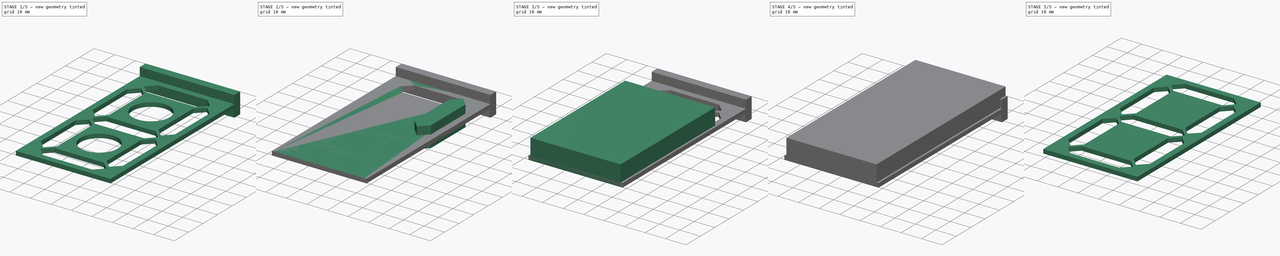
[diagram: build sequence overview — one tinted view per stage of 5, left to right]
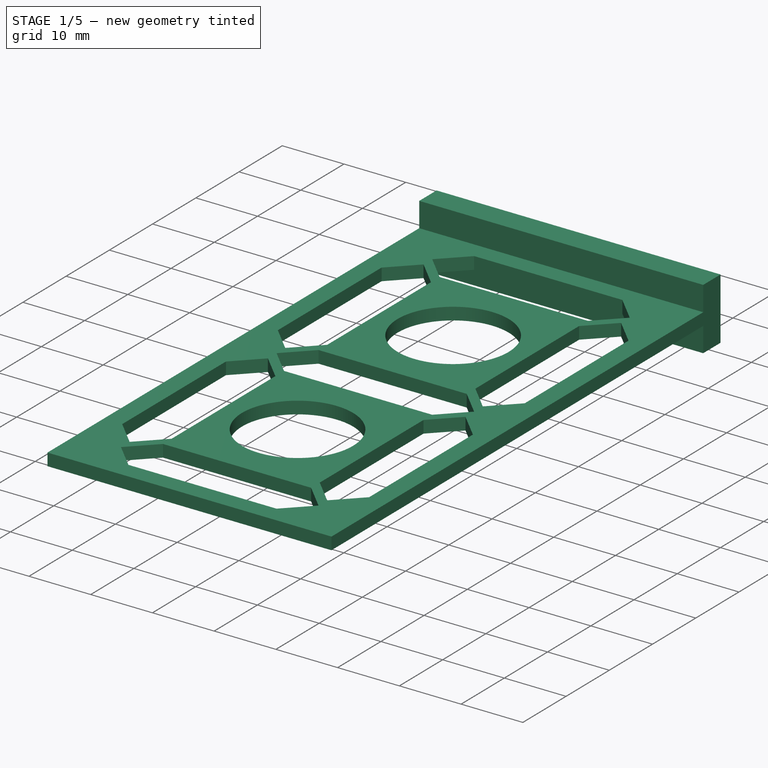
[diagram: stage 1 of 5 — iso view after this stage's code; geometry added in this stage tinted green]
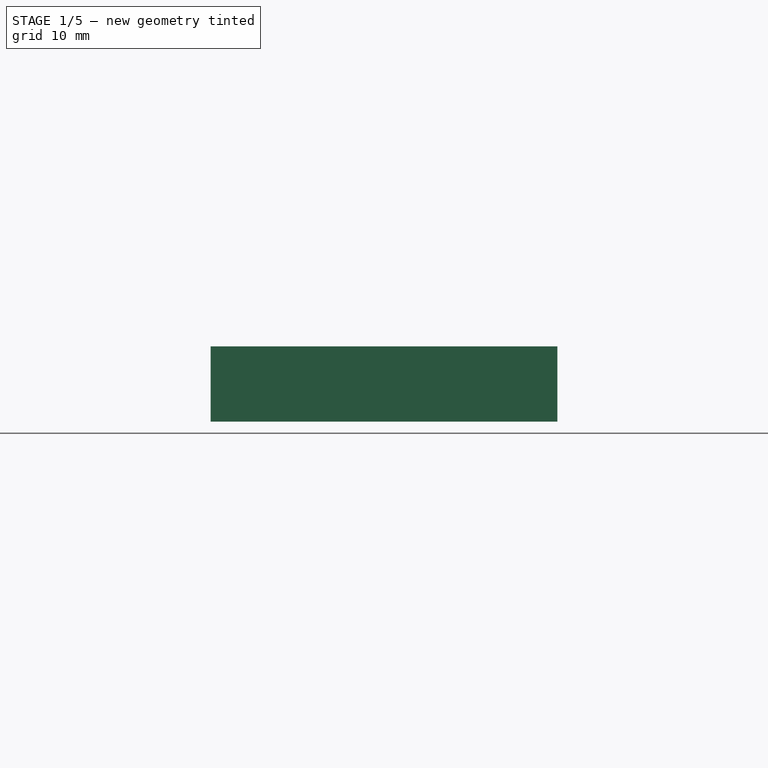
[diagram: stage 1 of 5 — front view after this stage's code; geometry added in this stage tinted green]
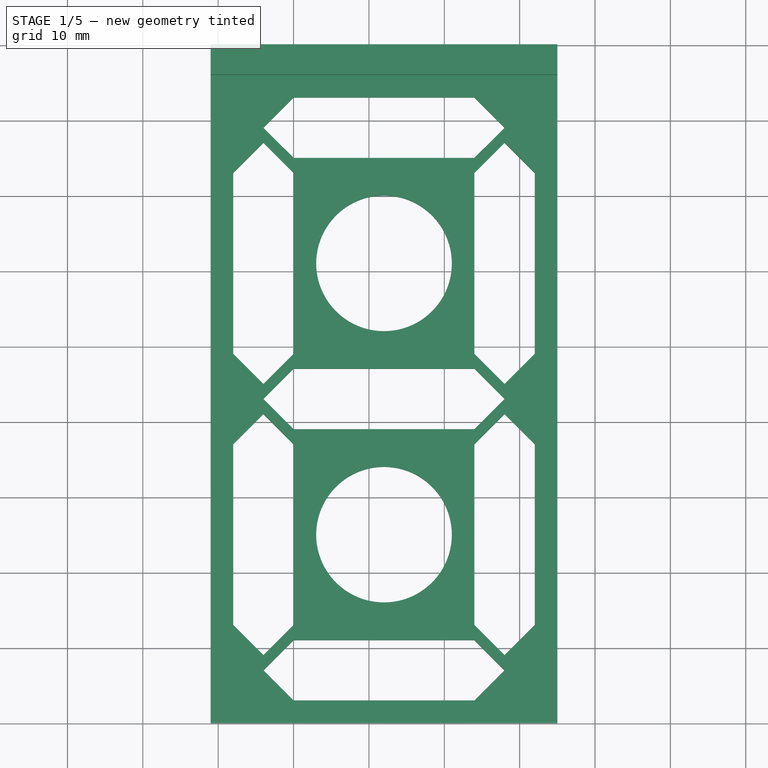
[diagram: stage 1 of 5 — top view after this stage's code; geometry added in this stage tinted green]
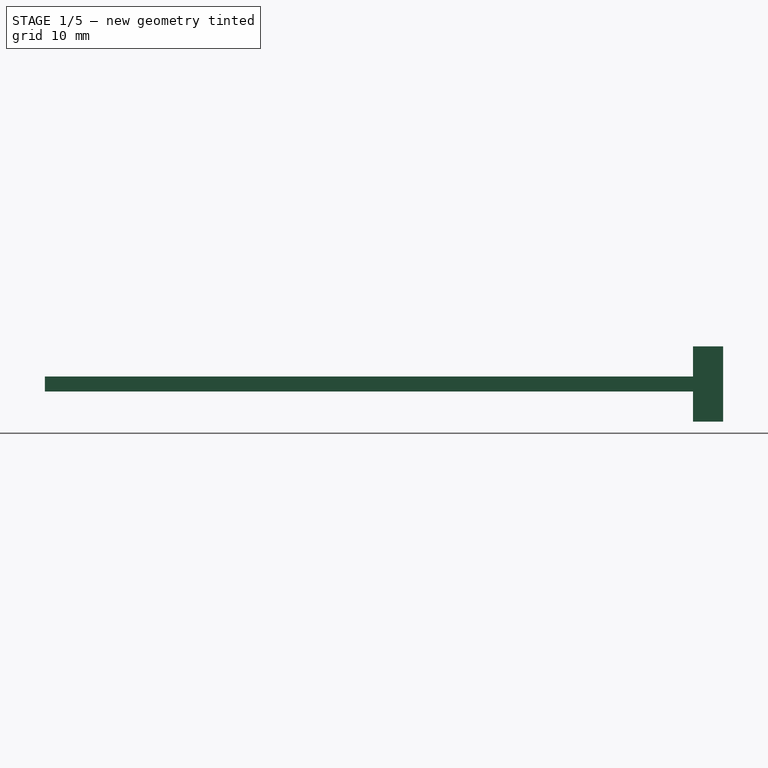
[diagram: stage 1 of 5 — right view after this stage's code; geometry added in this stage tinted green]
FCSTD DOCUMENT  (FreeCAD 0.17R13522 (Git))
Label: 7segmentsV2
License: CreativeCommons Attribution-ShareAlike
LicenseURL: http://creativecommons.org/licenses/by-sa/4.0/
objects: Part::Box×10, Part::Cut×10, Sketcher::SketchObject×7, Part::Extrusion×7, Part::Feature×3, Part::MultiFuse×2, Part::Cylinder×2
note: 41 computed .brp shape members not serialized (recipe doc carries the construction recipe); baked Part::Feature solids carry a one-line shape summary decoded from their .brp

FEATURE [Part::Box] Box  label="Cube"
  AttacherType = Attacher::AttachEngine3D
  Height = 2
  Length = 1
  Placement = pos=(-1,0,0) rot=(0,0,1;0rad)
  Width = 90
FEATURE [Part::Box] Box011  label="Cube011"
  AttacherType = Attacher::AttachEngine3D
  Height = 10
  Length = 46
  Placement = pos=(-1,86,-4) rot=(0,0,1;0rad)
  Width = 4
FEATURE [Part::Feature] Cut007001  label="plantilla_rellena"
  shape: bbox 46 x 86 x 2 mm, 48 faces (baked)
FEATURE [Part::Feature] Fusion002001  label="Fusion004"
  Placement = pos=(0,27,0) rot=(0,0,1;0rad)
  shape: bbox 20 x 12 x 10 mm, 35 faces (baked)
FEATURE [Part::Cylinder] Cylinder
  Angle = 360
  AttacherType = Attacher::AttachEngine3D
  Height = 10
  Placement = pos=(22,25,-3) rot=(0,0,1;0rad)
  Radius = 9
FEATURE [Part::Cylinder] Cylinder001
  Angle = 360
  AttacherType = Attacher::AttachEngine3D
  Height = 10
  Placement = pos=(22,61,-3) rot=(0,0,1;0rad)
  Radius = 9
FEATURE [Part::Feature] Cut007001001  label="plantilla_rellena001"
  shape: bbox 46 x 86 x 2 mm, 48 faces (baked)
FEATURE [Part::Cut] Cut007001002
  Base = -> Cut007001001
  Tool = -> Cylinder001
FEATURE [Part::Cut] Cut007001003  label="plantilla_liviana"
  Base = -> Cut007001002
  Tool = -> Cylinder
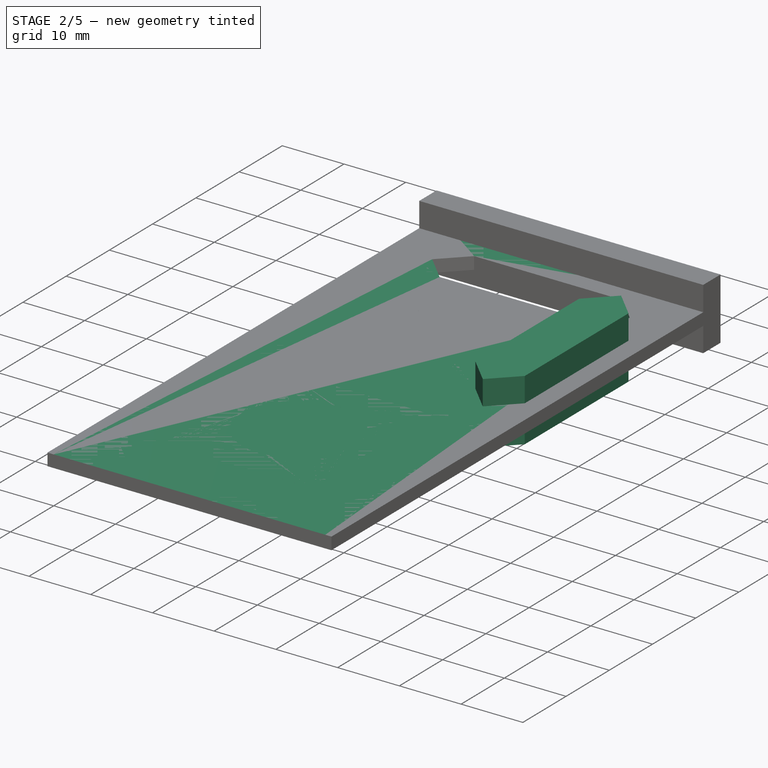
[diagram: stage 2 of 5 — iso view after this stage's code; geometry added in this stage tinted green]
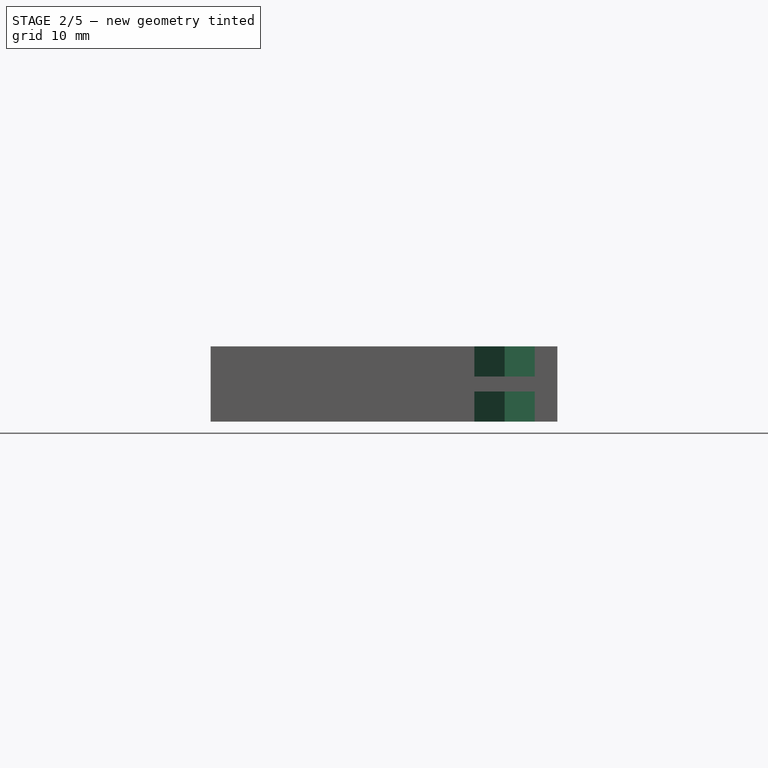
[diagram: stage 2 of 5 — front view after this stage's code; geometry added in this stage tinted green]
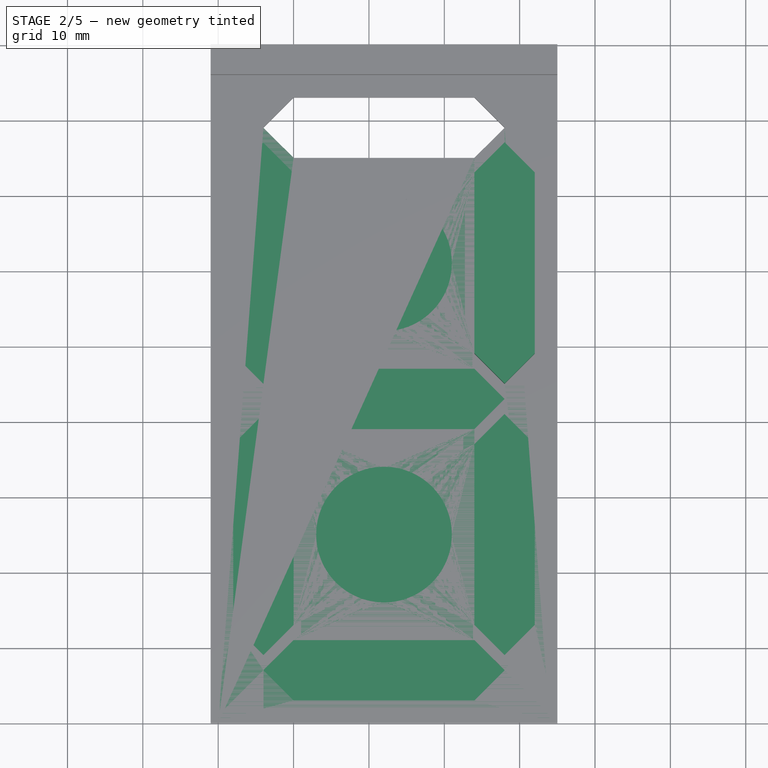
[diagram: stage 2 of 5 — top view after this stage's code; geometry added in this stage tinted green]
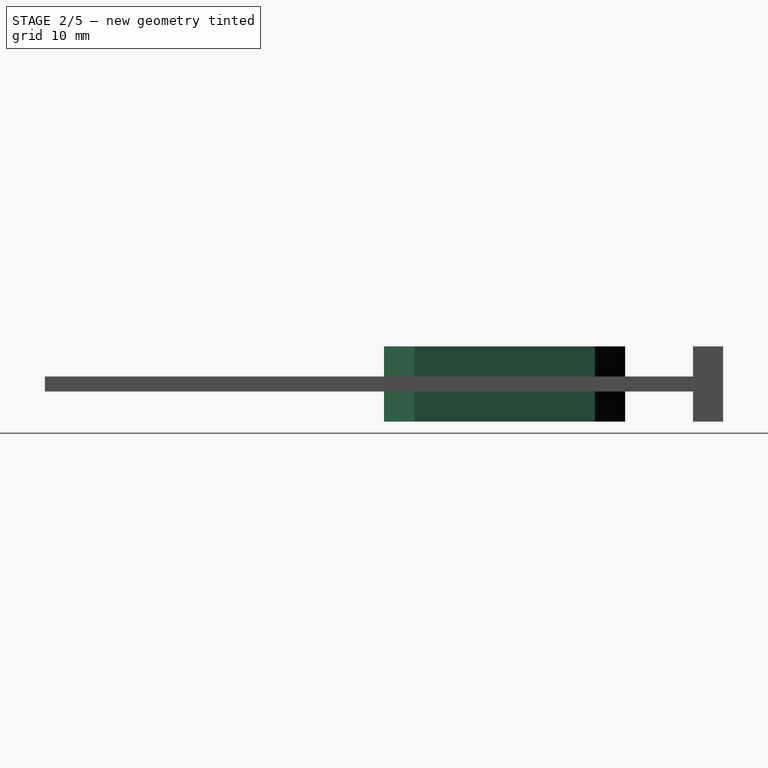
[diagram: stage 2 of 5 — right view after this stage's code; geometry added in this stage tinted green]
FEATURE [Sketcher::SketchObject] Sketch006  label="Sketch_C"
  ExternalGeometry = -> [Box004]
  MapMode = 5
  Placement = pos=(0,0,10) rot=(0,0,1;0rad)
  Support = -> [Box004]
  sketch-geometry (6):
    g0: LineSegment StartX=38 StartY=41 StartZ=0 EndX=42 EndY=37 EndZ=0
    g1: LineSegment StartX=42 StartY=37 StartZ=0 EndX=42 EndY=13 EndZ=0
    g2: LineSegment StartX=42 StartY=13 StartZ=0 EndX=38 EndY=9 EndZ=0
    g3: LineSegment StartX=38 StartY=9 StartZ=0 EndX=34 EndY=13 EndZ=0
    g4: LineSegment StartX=34 StartY=13 StartZ=0 EndX=34 EndY=37 EndZ=0
    g5: LineSegment StartX=34 StartY=37 StartZ=0 EndX=38 EndY=41 EndZ=0
  constraints (18):
    c: Coincident(g0,g1)
    c: Vertical(g1)
    c: Coincident(g1,g2)
    c: Coincident(g2,g3)
    c: Coincident(g3,g4)
    c: Vertical(g4)
    c: Coincident(g4,g5)
    c: Angle(g4,g5) = 2.35619
    c: Angle(g0,g1) = 2.35619
    c: Angle(g3,g4) = 2.35619
    c: Angle(g1,g2) = 2.35619
    c: DistanceX(g3,g1) = 8
    c: DistanceY(g3,g1) = 0
    c: DistanceY(g0,g4) = 0
    c: Coincident(g0,g5)
    c: DistanceX(g-3,g0) = 38
    c: DistanceY(g-1,g2) = 9
    c: Distance(g4,g3) = 24
FEATURE [Part::Box] Box001  label="Cube001"
  AttacherType = Attacher::AttachEngine3D
  Height = 2
  Length = 44
  Width = 90
FEATURE [Sketcher::SketchObject] Sketch003  label="Sketch_D"
  ExternalGeometry = -> [Box001]
  MapMode = 5
  Placement = pos=(0,0,2) rot=(0,0,1;0rad)
  Support = -> [Box001]
  sketch-geometry (6):
    g0: LineSegment StartX=10 StartY=11 StartZ=0 EndX=6 EndY=7 EndZ=0
    g1: LineSegment StartX=6 StartY=7 StartZ=0 EndX=10 EndY=3 EndZ=0
    g2: LineSegment StartX=10 StartY=3 StartZ=0 EndX=34 EndY=3 EndZ=0
    g3: LineSegment StartX=34 StartY=3 StartZ=0 EndX=38 EndY=7 EndZ=0
    g4: LineSegment StartX=38 StartY=7 StartZ=0 EndX=34 EndY=11 EndZ=0
    g5: LineSegment StartX=34 StartY=11 StartZ=0 EndX=10 EndY=11 EndZ=0
  constraints (18):
    c: Coincident(g0,g1)
    c: Coincident(g1,g2)
    c: Horizontal(g2)
    c: Coincident(g2,g3)
    c: Coincident(g3,g4)
    c: Coincident(g4,g5)
    c: Coincident(g5,g0)
    c: Horizontal(g5)
    c: DistanceY(g1,g0) = 8
    c: Angle(g0,g5) = 2.35619
    c: Angle(g2,g1) = 2.35619
    c: Angle(g5,g4) = 2.35619
    c: Angle(g3,g2) = 2.35619
    c: DistanceX(g0,g1) = 0
    c: DistanceX(g4,g2) = 0
    c: DistanceX(g-1,g0) = 6
    c: DistanceX(g3,g-3) = 6
    c: DistanceY(g-1,g1) = 3
FEATURE [Part::Box] Box005  label="Cube005"
  AttacherType = Attacher::AttachEngine3D
  Height = 10
  Length = 44
  Width = 66
FEATURE [Sketcher::SketchObject] Sketch008  label="Sketch_G"
  ExternalGeometry = -> [Box006]
  MapMode = 5
  Placement = pos=(0,0,10) rot=(0,0,1;0rad)
  Support = -> [Box006]
  sketch-geometry (6):
    g0: LineSegment StartX=10 StartY=47 StartZ=0 EndX=6 EndY=43 EndZ=0
    g1: LineSegment StartX=6 StartY=43 StartZ=0 EndX=10 EndY=39 EndZ=0
    g2: LineSegment StartX=10 StartY=39 StartZ=0 EndX=34 EndY=39 EndZ=0
    g3: LineSegment StartX=34 StartY=39 StartZ=0 EndX=38 EndY=43 EndZ=0
    g4: LineSegment StartX=38 StartY=43 StartZ=0 EndX=34 EndY=47 EndZ=0
    g5: LineSegment StartX=34 StartY=47 StartZ=0 EndX=10 EndY=47 EndZ=0
  constraints (18):
    c: Coincident(g0,g1)
    c: Coincident(g1,g2)
    c: Horizontal(g2)
    c: Coincident(g2,g3)
    c: Coincident(g3,g4)
    c: Coincident(g4,g5)
    c: Coincident(g5,g0)
    c: Horizontal(g5)
    c: DistanceY(g1,g0) = 8
    c: Angle(g0,g5) = 2.35619
    c: Angle(g2,g1) = 2.35619
    c: Angle(g5,g4) = 2.35619
    c: Angle(g3,g2) = 2.35619
    c: DistanceX(g0,g1) = 0
    c: DistanceX(g4,g2) = 0
    c: DistanceX(g-1,g0) = 6
    c: DistanceX(g3,g-3) = 6
    c: DistanceY(g-1,g3) = 43
FEATURE [Part::Box] Box007  label="Cube007"
  AttacherType = Attacher::AttachEngine3D
  Height = 10
  Length = 44
  Width = 90
FEATURE [Part::Extrusion] Extrude001  label="Extrude_A"
  Base = -> Sketch009
  Dir = (0,0,1)
  DirMode = 2
  FaceMakerClass = Part::FaceMakerBullseye
  LengthFwd = 10
  LengthRev = 0
  Placement = pos=(0,0,-14) rot=(0,0,1;0rad)
  Solid = true
  Symmetric = false
FEATURE [Part::Extrusion] Extrude002  label="Extrude_B"
  Base = -> Sketch007
  Dir = (0,0,1)
  DirMode = 2
  FaceMakerClass = Part::FaceMakerBullseye
  LengthFwd = 10
  LengthRev = 0
  Placement = pos=(0,0,-14) rot=(0,0,1;0rad)
  Solid = true
  Symmetric = false
FEATURE [Part::Cut] Cut
  Base = -> Box001
  Tool = -> Extrude001
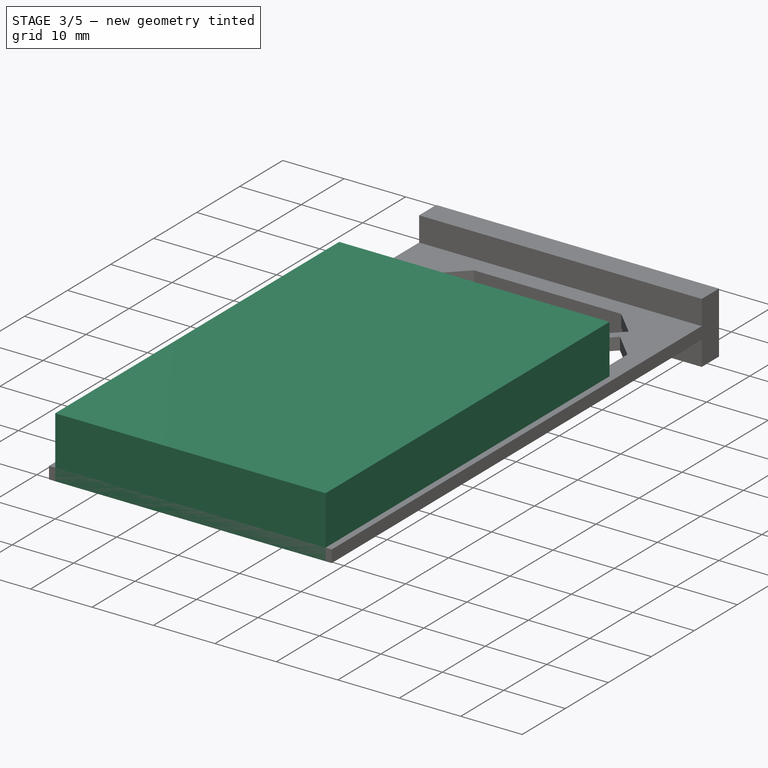
[diagram: stage 3 of 5 — iso view after this stage's code; geometry added in this stage tinted green]
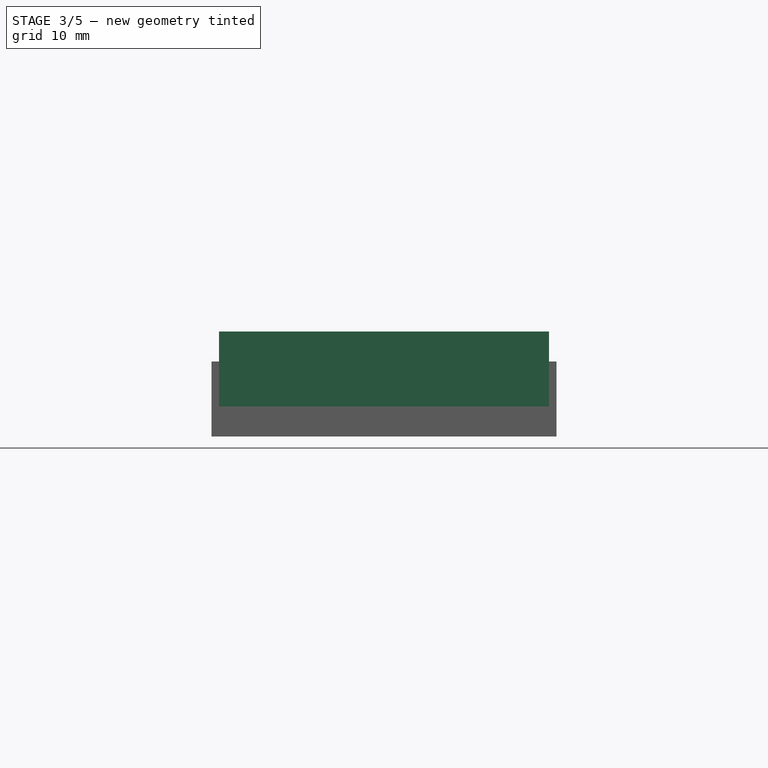
[diagram: stage 3 of 5 — front view after this stage's code; geometry added in this stage tinted green]
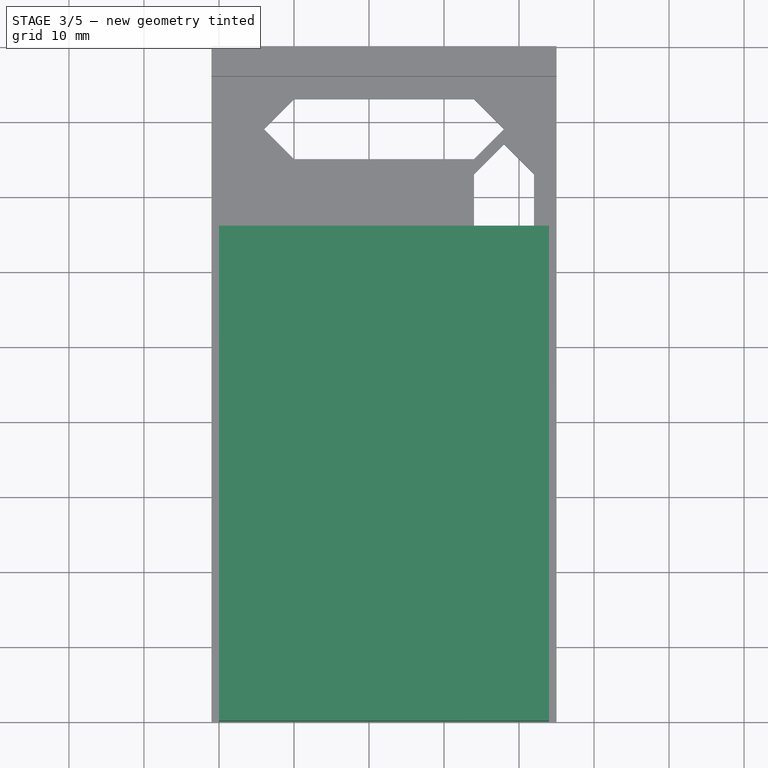
[diagram: stage 3 of 5 — top view after this stage's code; geometry added in this stage tinted green]
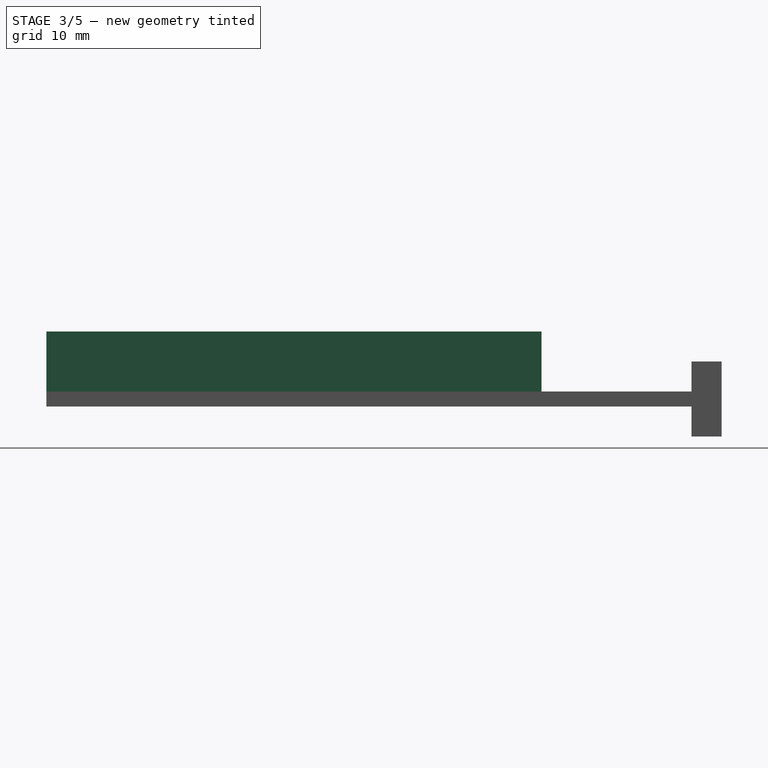
[diagram: stage 3 of 5 — right view after this stage's code; geometry added in this stage tinted green]
FEATURE [Part::Box] Box004  label="Cube004"
  AttacherType = Attacher::AttachEngine3D
  Height = 10
  Length = 44
  Width = 66
FEATURE [Sketcher::SketchObject] Sketch010  label="Sketch_F"
  ExternalGeometry = -> [Box008]
  MapMode = 5
  Placement = pos=(0,0,10) rot=(0,0,1;0rad)
  Support = -> [Box008]
  sketch-geometry (6):
    g0: LineSegment StartX=6 StartY=77 StartZ=0 EndX=10 EndY=73 EndZ=0
    g1: LineSegment StartX=10 StartY=73 StartZ=0 EndX=10 EndY=49 EndZ=0
    g2: LineSegment StartX=10 StartY=49 StartZ=0 EndX=6 EndY=45 EndZ=0
    g3: LineSegment StartX=6 StartY=45 StartZ=0 EndX=2 EndY=49 EndZ=0
    g4: LineSegment StartX=2 StartY=49 StartZ=0 EndX=2 EndY=73 EndZ=0
    g5: LineSegment StartX=2 StartY=73 StartZ=0 EndX=6 EndY=77 EndZ=0
  constraints (18):
    c: Coincident(g0,g1)
    c: Vertical(g1)
    c: Coincident(g1,g2)
    c: Coincident(g2,g3)
    c: Coincident(g3,g4)
    c: Vertical(g4)
    c: Coincident(g4,g5)
    c: Angle(g4,g5) = 2.35619
    c: Angle(g0,g1) = 2.35619
    c: Angle(g3,g4) = 2.35619
    c: Angle(g1,g2) = 2.35619
    c: DistanceX(g3,g1) = 8
    c: DistanceY(g3,g1) = 0
    c: DistanceY(g0,g4) = 0
    c: Coincident(g0,g5)
    c: DistanceX(g-3,g0) = 6
    c: Distance(g4,g3) = 24
    c: DistanceY(g-1,g2) = 45
FEATURE [Part::Box] Box009  label="Cube009"
  AttacherType = Attacher::AttachEngine3D
  Height = 10
  Length = 44
  Width = 66
FEATURE [Sketcher::SketchObject] Sketch011  label="Sketch_E"
  ExternalGeometry = -> [Box009]
  MapMode = 5
  Placement = pos=(0,0,10) rot=(0,0,1;0rad)
  Support = -> [Box009]
  sketch-geometry (6):
    g0: LineSegment StartX=6 StartY=41 StartZ=0 EndX=10 EndY=37 EndZ=0
    g1: LineSegment StartX=10 StartY=37 StartZ=0 EndX=10 EndY=13 EndZ=0
    g2: LineSegment StartX=10 StartY=13 StartZ=0 EndX=6 EndY=9 EndZ=0
    g3: LineSegment StartX=6 StartY=9 StartZ=0 EndX=2 EndY=13 EndZ=0
    g4: LineSegment StartX=2 StartY=13 StartZ=0 EndX=2 EndY=37 EndZ=0
    g5: LineSegment StartX=2 StartY=37 StartZ=0 EndX=6 EndY=41 EndZ=0
  constraints (18):
    c: Coincident(g0,g1)
    c: Vertical(g1)
    c: Coincident(g1,g2)
    c: Coincident(g2,g3)
    c: Coincident(g3,g4)
    c: Vertical(g4)
    c: Coincident(g4,g5)
    c: Angle(g4,g5) = 2.35619
    c: Angle(g0,g1) = 2.35619
    c: Angle(g3,g4) = 2.35619
    c: Angle(g1,g2) = 2.35619
    c: DistanceX(g3,g1) = 8
    c: DistanceY(g3,g1) = 0
    c: DistanceY(g0,g4) = 0
    c: Coincident(g0,g5)
    c: DistanceX(g-3,g0) = 6
    c: DistanceY(g-1,g2) = 9
    c: Distance(g4,g3) = 24
FEATURE [Part::Extrusion] Extrude  label="Extrude_D"
  Base = -> Sketch003
  Dir = (0,0,1)
  DirMode = 2
  FaceMakerClass = Part::FaceMakerBullseye
  LengthFwd = 10
  LengthRev = 0
  Placement = pos=(0,0,-6) rot=(0,0,1;0rad)
  Solid = true
  Symmetric = false
FEATURE [Part::Extrusion] Extrude003  label="Extrude_C"
  Base = -> Sketch006
  Dir = (0,0,1)
  DirMode = 2
  FaceMakerClass = Part::FaceMakerBullseye
  LengthFwd = 10
  LengthRev = 0
  Placement = pos=(0,0,-14) rot=(0,0,1;0rad)
  Solid = true
  Symmetric = false
FEATURE [Part::Cut] Cut001
  Base = -> Cut
  Tool = -> Extrude002
FEATURE [Part::Cut] Cut002
  Base = -> Cut001
  Tool = -> Extrude003
FEATURE [Part::Cut] Cut003
  Base = -> Cut002
  Tool = -> Extrude
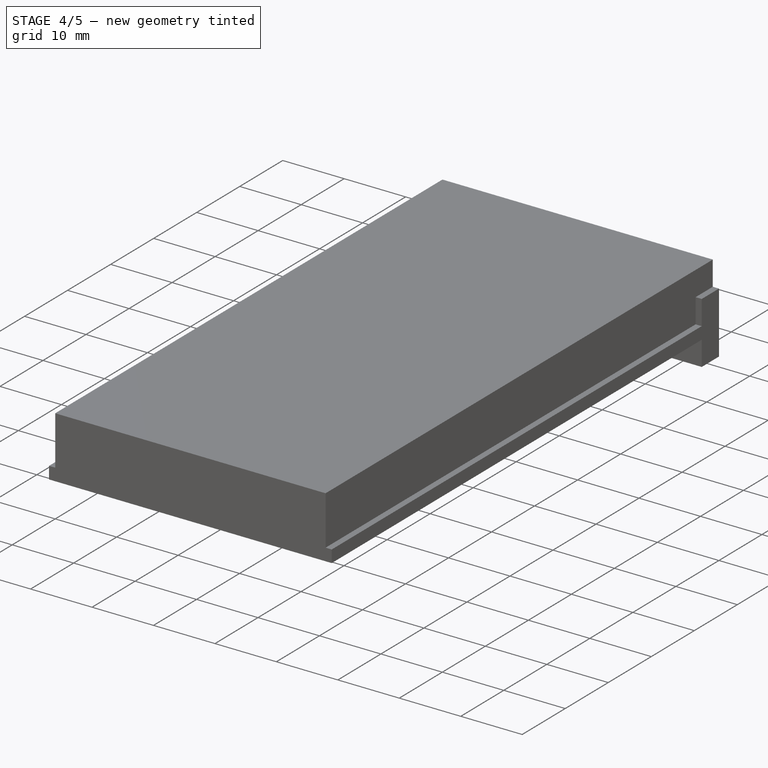
[diagram: stage 4 of 5 — iso view after this stage's code; geometry added in this stage tinted green]
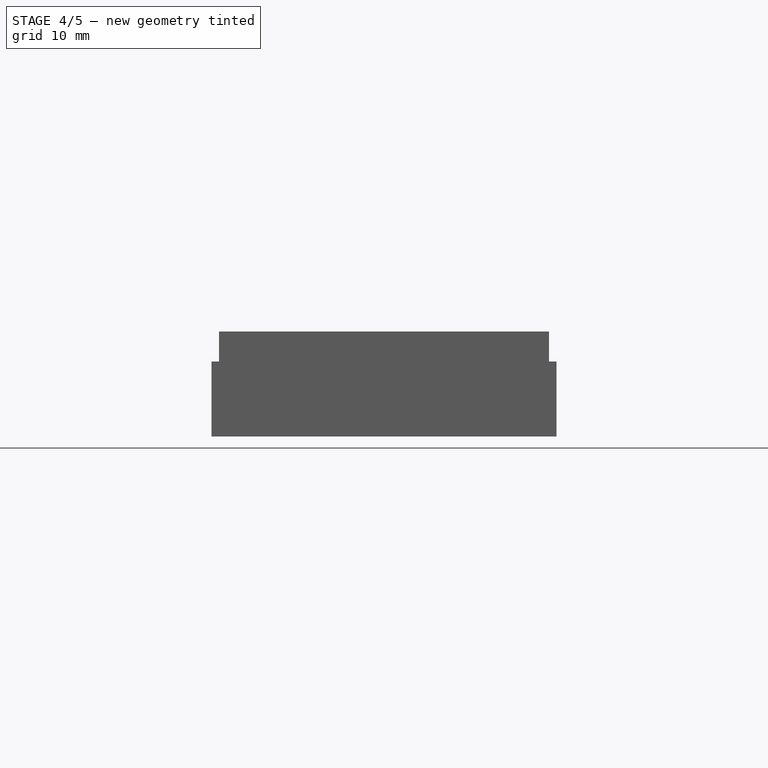
[diagram: stage 4 of 5 — front view after this stage's code; geometry added in this stage tinted green]
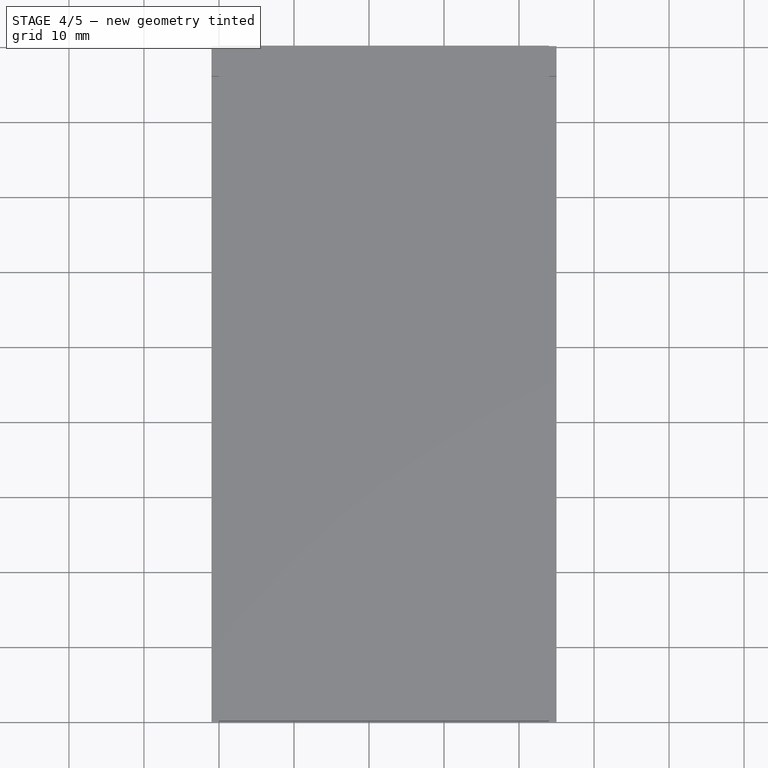
[diagram: stage 4 of 5 — top view after this stage's code; geometry added in this stage tinted green]
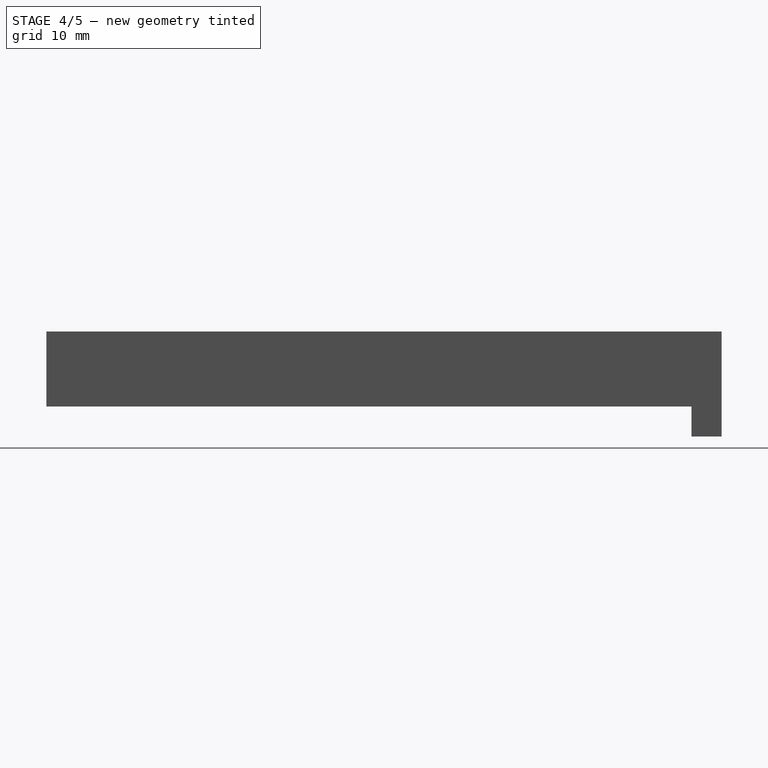
[diagram: stage 4 of 5 — right view after this stage's code; geometry added in this stage tinted green]
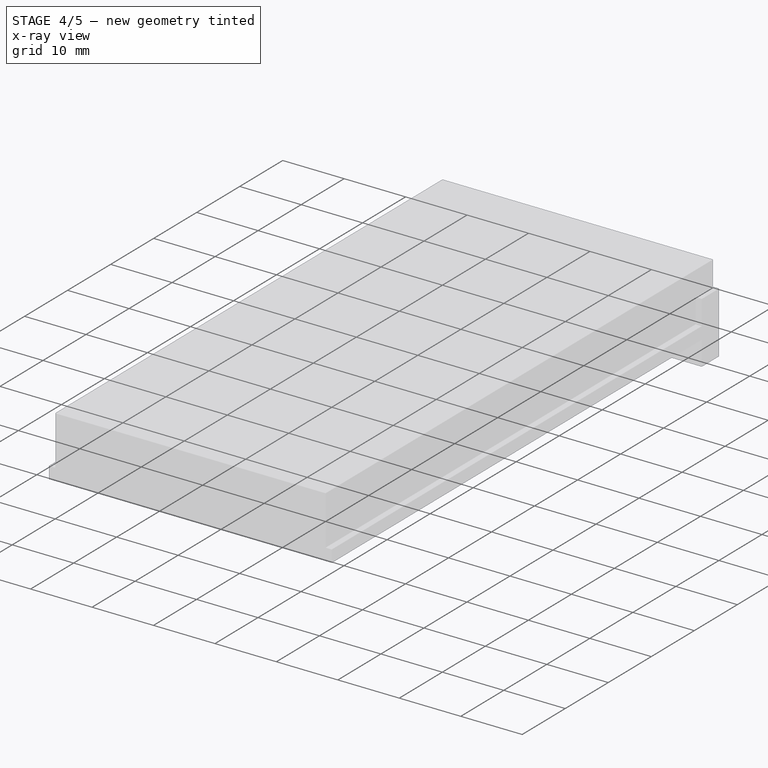
[diagram: stage 4 of 5 — x-ray composite at the iso view; earlier geometry ghosted, this stage's added geometry solid]
FEATURE [Sketcher::SketchObject] Sketch007  label="Sketch_B"
  ExternalGeometry = -> [Box005]
  MapMode = 5
  Placement = pos=(0,0,10) rot=(0,0,1;0rad)
  Support = -> [Box005]
  sketch-geometry (6):
    g0: LineSegment StartX=38 StartY=77 StartZ=0 EndX=42 EndY=73 EndZ=0
    g1: LineSegment StartX=42 StartY=73 StartZ=0 EndX=42 EndY=49 EndZ=0
    g2: LineSegment StartX=42 StartY=49 StartZ=0 EndX=38 EndY=45 EndZ=0
    g3: LineSegment StartX=38 StartY=45 StartZ=0 EndX=34 EndY=49 EndZ=0
    g4: LineSegment StartX=34 StartY=49 StartZ=0 EndX=34 EndY=73 EndZ=0
    g5: LineSegment StartX=34 StartY=73 StartZ=0 EndX=38 EndY=77 EndZ=0
  constraints (18):
    c: Coincident(g0,g1)
    c: Vertical(g1)
    c: Coincident(g1,g2)
    c: Coincident(g2,g3)
    c: Coincident(g3,g4)
    c: Vertical(g4)
    c: Coincident(g4,g5)
    c: Angle(g4,g5) = 2.35619
    c: Angle(g0,g1) = 2.35619
    c: Angle(g3,g4) = 2.35619
    c: Angle(g1,g2) = 2.35619
    c: DistanceX(g3,g1) = 8
    c: DistanceY(g3,g1) = 0
    c: DistanceY(g0,g4) = 0
    c: Coincident(g0,g5)
    c: DistanceX(g-3,g0) = 38
    c: Distance(g4,g3) = 24
    c: DistanceY(g-1,g2) = 45
FEATURE [Part::Box] Box006  label="Cube006"
  AttacherType = Attacher::AttachEngine3D
  Height = 10
  Length = 44
  Width = 90
FEATURE [Sketcher::SketchObject] Sketch009  label="Sketch_A"
  ExternalGeometry = -> [Box007]
  MapMode = 5
  Placement = pos=(0,0,10) rot=(0,0,1;0rad)
  Support = -> [Box007]
  sketch-geometry (6):
    g0: LineSegment StartX=10 StartY=83 StartZ=0 EndX=6 EndY=79 EndZ=0
    g1: LineSegment StartX=6 StartY=79 StartZ=0 EndX=10 EndY=75 EndZ=0
    g2: LineSegment StartX=10 StartY=75 StartZ=0 EndX=34 EndY=75 EndZ=0
    g3: LineSegment StartX=34 StartY=75 StartZ=0 EndX=38 EndY=79 EndZ=0
    g4: LineSegment StartX=38 StartY=79 StartZ=0 EndX=34 EndY=83 EndZ=0
    g5: LineSegment StartX=34 StartY=83 StartZ=0 EndX=10 EndY=83 EndZ=0
  constraints (18):
    c: Coincident(g0,g1)
    c: Coincident(g1,g2)
    c: Horizontal(g2)
    c: Coincident(g2,g3)
    c: Coincident(g3,g4)
    c: Coincident(g4,g5)
    c: Coincident(g5,g0)
    c: Horizontal(g5)
    c: DistanceY(g1,g0) = 8
    c: Angle(g0,g5) = 2.35619
    c: Angle(g2,g1) = 2.35619
    c: Angle(g5,g4) = 2.35619
    c: Angle(g3,g2) = 2.35619
    c: DistanceX(g0,g1) = 0
    c: DistanceX(g4,g2) = 0
    c: DistanceX(g-1,g0) = 6
    c: DistanceX(g3,g-3) = 6
    c: DistanceY(g0) = 79
FEATURE [Part::Box] Box008  label="Cube008"
  AttacherType = Attacher::AttachEngine3D
  Height = 10
  Length = 44
  Width = 66
FEATURE [Part::Extrusion] Extrude004  label="Extrude_E"
  Base = -> Sketch011
  Dir = (0,0,1)
  DirMode = 2
  FaceMakerClass = Part::FaceMakerBullseye
  LengthFwd = 10
  LengthRev = 0
  Placement = pos=(0,0,-14) rot=(0,0,1;0rad)
  Solid = true
  Symmetric = false
FEATURE [Part::Extrusion] Extrude005  label="Extrude_F"
  Base = -> Sketch010
  Dir = (0,0,1)
  DirMode = 2
  FaceMakerClass = Part::FaceMakerBullseye
  LengthFwd = 10
  LengthRev = 0
  Placement = pos=(0,0,-14) rot=(0,0,1;0rad)
  Solid = true
  Symmetric = false
FEATURE [Part::Cut] Cut004
  Base = -> Cut003
  Tool = -> Extrude004
FEATURE [Part::Cut] Cut005
  Base = -> Cut004
  Tool = -> Extrude005
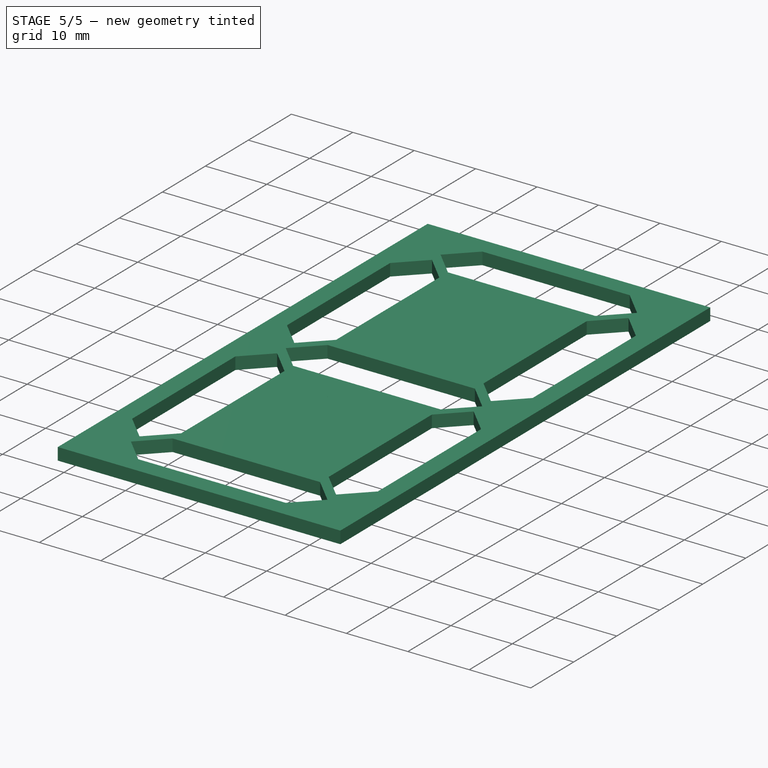
[diagram: stage 5 of 5 — iso view after this stage's code; geometry added in this stage tinted green]
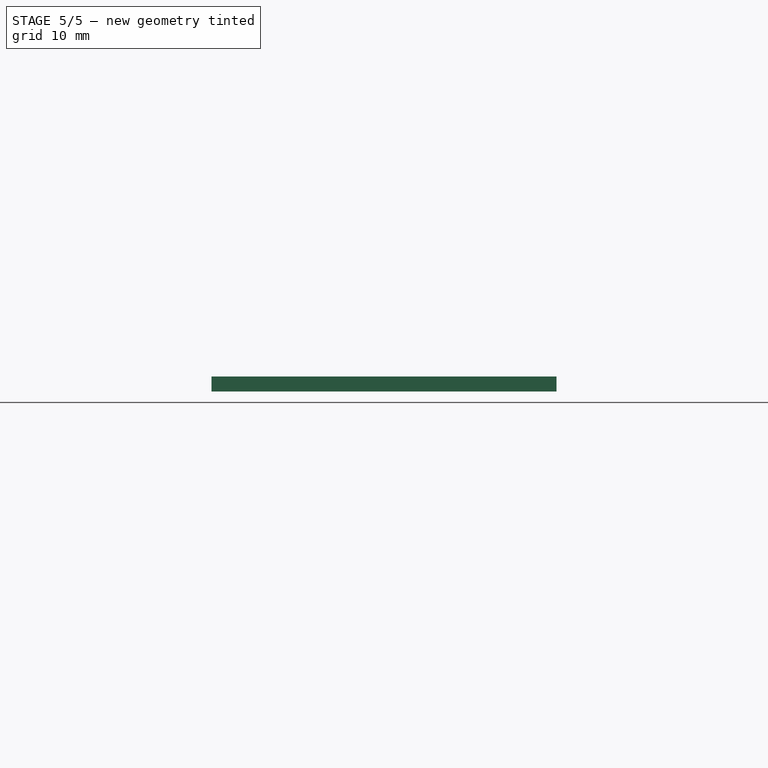
[diagram: stage 5 of 5 — front view after this stage's code; geometry added in this stage tinted green]
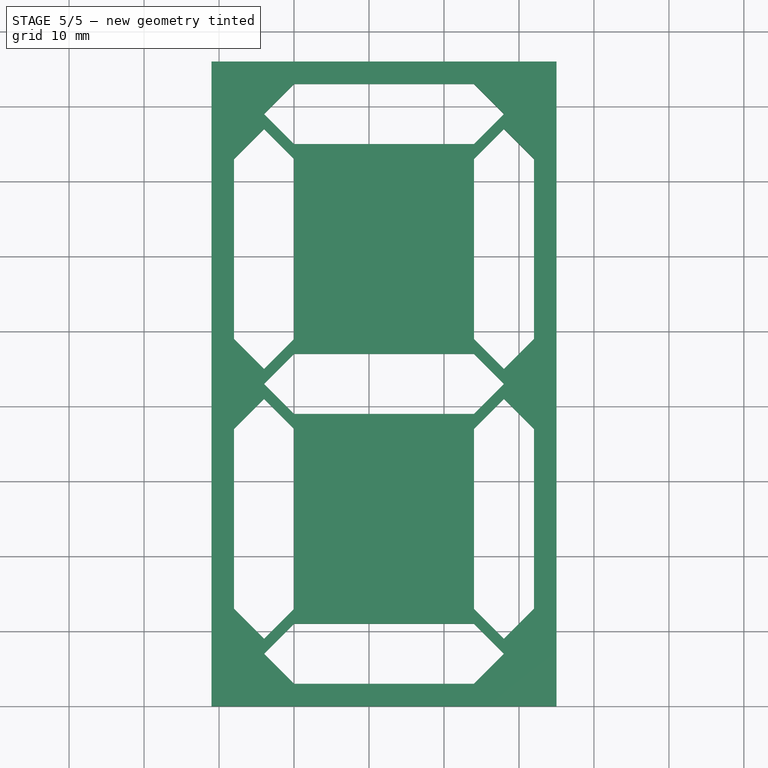
[diagram: stage 5 of 5 — top view after this stage's code; geometry added in this stage tinted green]
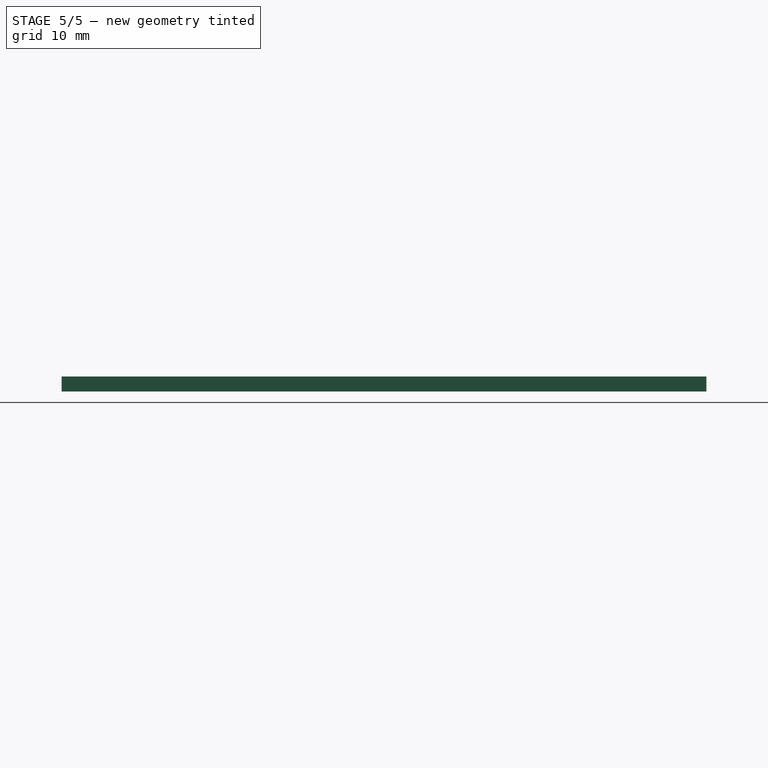
[diagram: stage 5 of 5 — right view after this stage's code; geometry added in this stage tinted green]
FEATURE [Part::Extrusion] Extrude006  label="Extrude_G"
  Base = -> Sketch008
  Dir = (0,0,1)
  DirMode = 2
  FaceMakerClass = Part::FaceMakerBullseye
  LengthFwd = 10
  LengthRev = 0
  Placement = pos=(0,0,-14) rot=(0,0,1;0rad)
  Solid = true
  Symmetric = false
FEATURE [Part::Cut] Cut006
  Base = -> Cut005
  Tool = -> Extrude006
FEATURE [Part::Box] Box010  label="Cube010"
  AttacherType = Attacher::AttachEngine3D
  Height = 2
  Length = 1
  Placement = pos=(44,0,0) rot=(0,0,1;0rad)
  Width = 90
FEATURE [Part::MultiFuse] Fusion
  Shapes = -> [Cut006,Box]
FEATURE [Part::MultiFuse] Fusion001
  Shapes = -> [Fusion,Box010]
FEATURE [Part::Cut] Cut007
  Base = -> Fusion001
  Tool = -> Box011
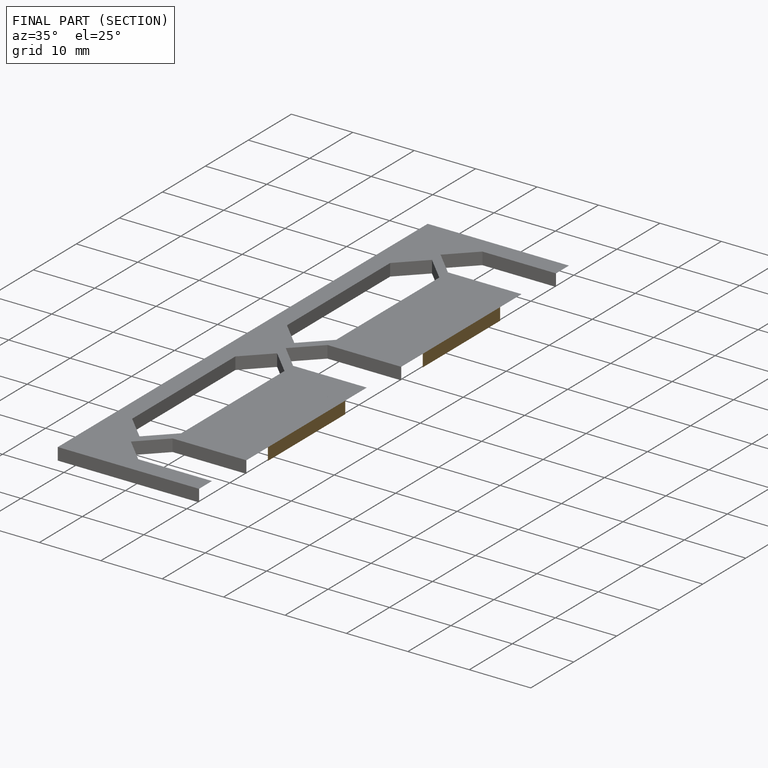
[diagram: finished part — half-section view (interior)]
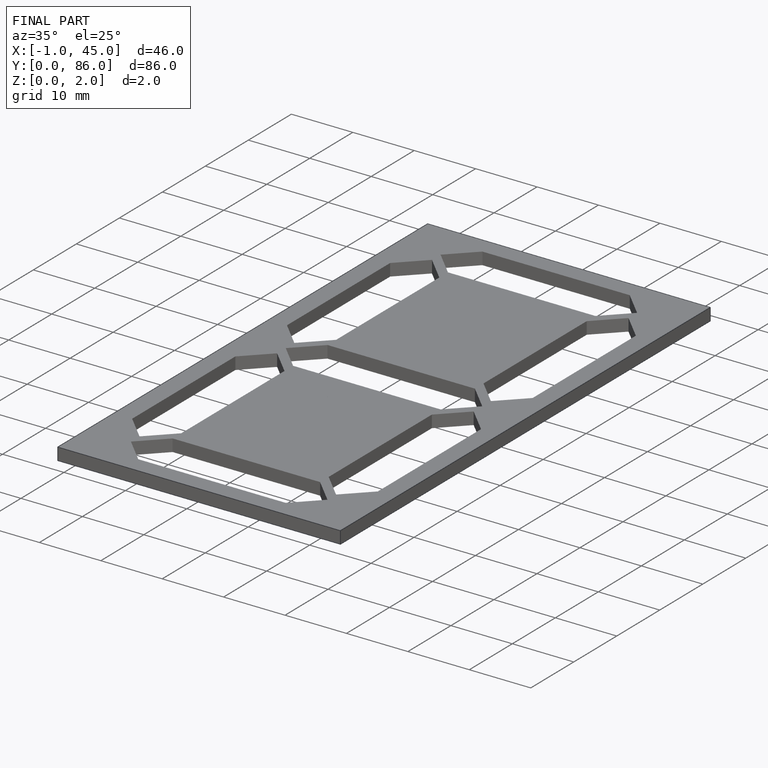
[diagram: finished part — iso view with bounding-box wireframe]
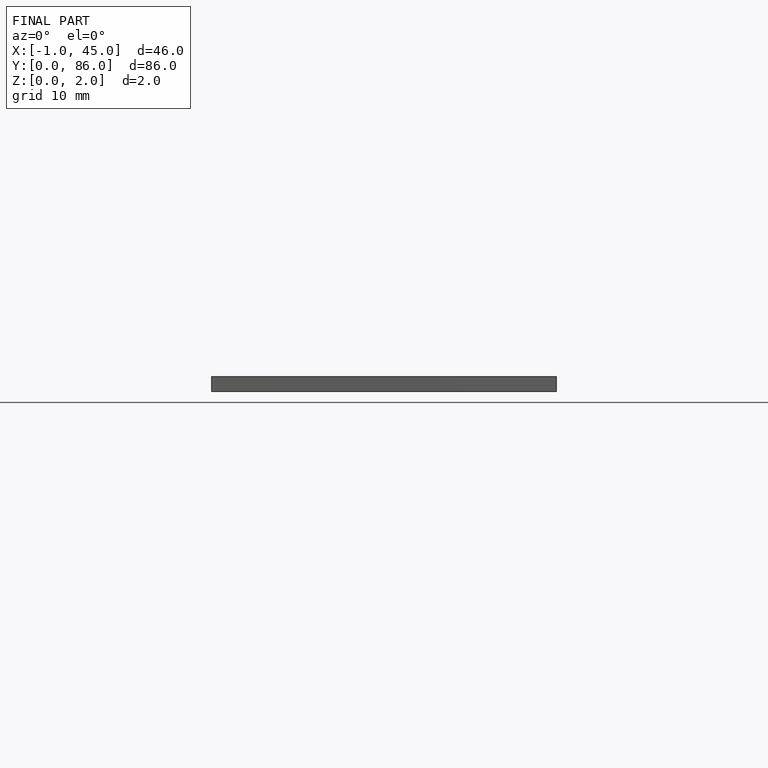
[diagram: finished part — front view with bounding-box wireframe]
